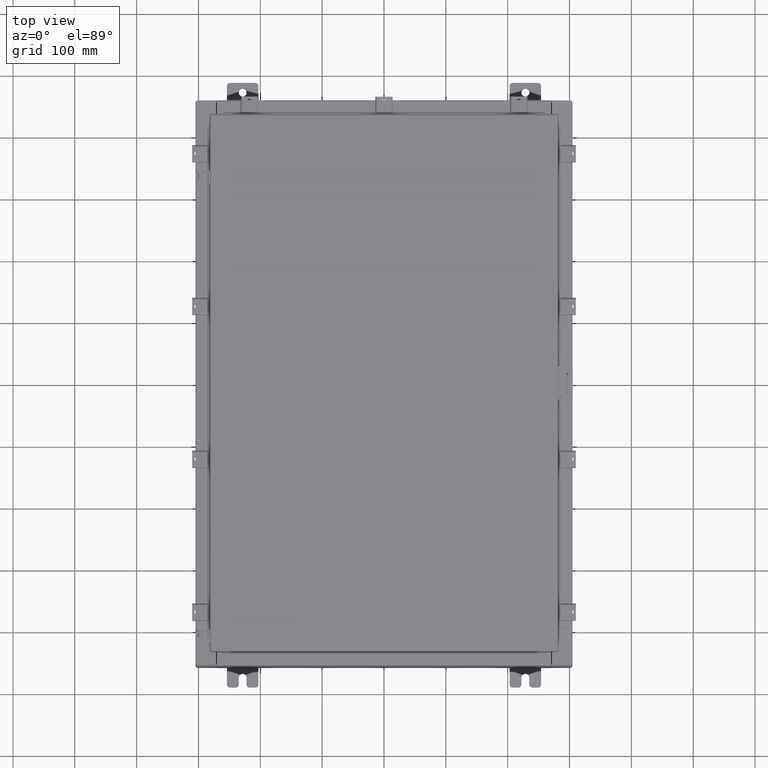
[diagram: clean part render]
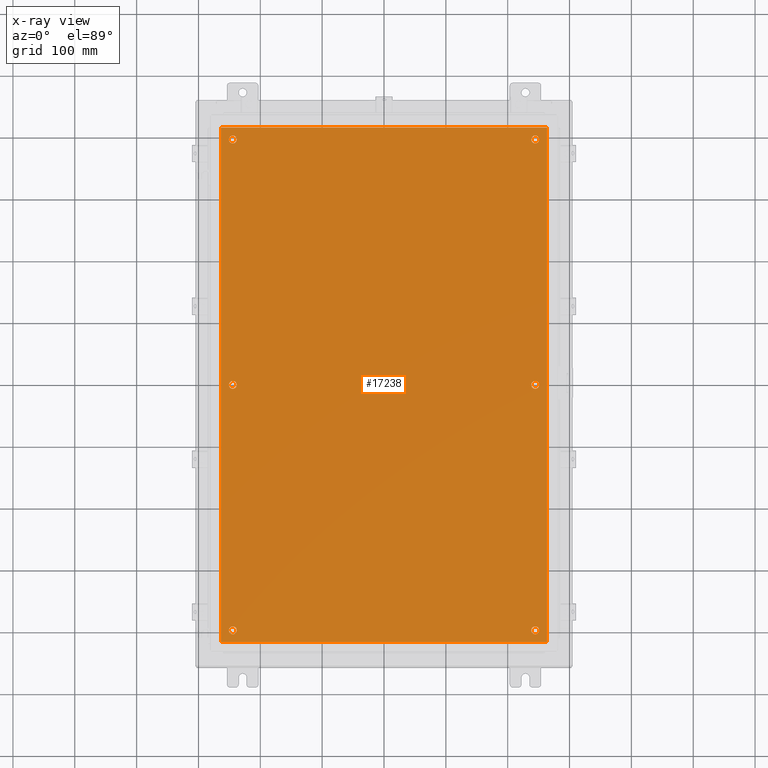
[diagram: x-ray — body ghosted, one internal face saturated and labeled with its STEP entity id]
A machine part, top view, then the same camera in x-ray: the body is ghosted and one INTERNAL B-rep face — a face not visible from any outside direction — is saturated and labeled: STEP entity #17238.
In plain terms, the highlighted planar face has unit normal (0, 0, -1).
Its self-contained STEP definition (entity closure, byte-faithful):
#138 = DIRECTION ( 'NONE',  ( -1.000000000000000000, 0.0000000000000000000, 0.0000000000000000000 ) ) ;
#176 = CARTESIAN_POINT ( 'NONE',  ( 9.375000000000007100, -15.62500000000000200, -0.1039999999999999800 ) ) ;
#216 = CARTESIAN_POINT ( 'NONE',  ( 9.875000000000007100, 15.62500000000000200, -0.1039999999999999800 ) ) ;
#362 = ORIENTED_EDGE ( 'NONE', *, *, #18211, .F. ) ;
#976 = CIRCLE ( 'NONE', #16260, 0.2500000000000008900 ) ;
#1288 = DIRECTION ( 'NONE',  ( -1.000000000000000000, -0.0000000000000000000, -0.0000000000000000000 ) ) ;
#1302 = DIRECTION ( 'NONE',  ( -0.0000000000000000000, -0.0000000000000000000, 1.000000000000000000 ) ) ;
#1373 = EDGE_CURVE ( 'NONE', #12026, #2351, #16965, .T. ) ;
#1478 = DIRECTION ( 'NONE',  ( -0.0000000000000000000, -0.0000000000000000000, 1.000000000000000000 ) ) ;
#1565 = DIRECTION ( 'NONE',  ( 0.0000000000000000000, 0.0000000000000000000, -1.000000000000000000 ) ) ;
#1702 = CARTESIAN_POINT ( 'NONE',  ( -9.875000000000005300, 2.934704822324310800E-016, -0.1039999999999999800 ) ) ;
#1804 = EDGE_LOOP ( 'NONE', ( #2750, #6447 ) ) ;
#2069 = EDGE_LOOP ( 'NONE', ( #3974, #10580 ) ) ;
#2170 = ORIENTED_EDGE ( 'NONE', *, *, #8613, .T. ) ;
#2229 = LINE ( 'NONE', #4068, #16019 ) ;
#2271 = FACE_BOUND ( 'NONE', #4596, .T. ) ;
#2315 = AXIS2_PLACEMENT_3D ( 'NONE', #3792, #16349, #5611 ) ;
#2351 = VERTEX_POINT ( 'NONE', #5819 ) ;
#2583 = CIRCLE ( 'NONE', #13282, 0.2499999999999998100 ) ;
#2634 = ORIENTED_EDGE ( 'NONE', *, *, #9443, .T. ) ;
#2635 = CARTESIAN_POINT ( 'NONE',  ( 9.625000000000007100, -15.62500000000000200, -0.1039999999999999800 ) ) ;
#2667 = DIRECTION ( 'NONE',  ( -0.0000000000000000000, -0.0000000000000000000, 1.000000000000000000 ) ) ;
#2746 = EDGE_CURVE ( 'NONE', #15070, #3281, #16071, .T. ) ;
#2750 = ORIENTED_EDGE ( 'NONE', *, *, #15565, .T. ) ;
#2839 = FACE_BOUND ( 'NONE', #10073, .T. ) ;
#2886 = EDGE_CURVE ( 'NONE', #19954, #11403, #4242, .T. ) ;
#3207 = DIRECTION ( 'NONE',  ( 1.000000000000000000, -0.0000000000000000000, -0.0000000000000000000 ) ) ;
#3281 = VERTEX_POINT ( 'NONE', #13392 ) ;
#3792 = CARTESIAN_POINT ( 'NONE',  ( -9.625000000000007100, -15.62500000000000200, -0.1039999999999999800 ) ) ;
#3833 = AXIS2_PLACEMENT_3D ( 'NONE', #6658, #19201, #8476 ) ;
#3965 = FACE_BOUND ( 'NONE', #2069, .T. ) ;
#3974 = ORIENTED_EDGE ( 'NONE', *, *, #22916, .T. ) ;
#4068 = CARTESIAN_POINT ( 'NONE',  ( 10.38300000000000100, -16.38299999999999600, -0.1040000000000009100 ) ) ;
#4144 = ORIENTED_EDGE ( 'NONE', *, *, #2746, .F. ) ;
#4242 = CIRCLE ( 'NONE', #18033, 0.2499999999999998100 ) ;
#4439 = DIRECTION ( 'NONE',  ( -1.000000000000000000, 0.0000000000000000000, 0.0000000000000000000 ) ) ;
#4551 = EDGE_CURVE ( 'NONE', #3281, #23018, #20234, .T. ) ;
#4596 = EDGE_LOOP ( 'NONE', ( #2170, #2634 ) ) ;
#5258 = CARTESIAN_POINT ( 'NONE',  ( 9.375000000000007100, 2.650915570591087300E-015, -0.1039999999999999800 ) ) ;
#5611 = DIRECTION ( 'NONE',  ( -1.000000000000000000, 0.0000000000000000000, 0.0000000000000000000 ) ) ;
#5819 = CARTESIAN_POINT ( 'NONE',  ( -9.375000000000007100, 15.62500000000000200, -0.1039999999999999800 ) ) ;
#6079 = VERTEX_POINT ( 'NONE', #17801 ) ;
#6082 = CARTESIAN_POINT ( 'NONE',  ( -9.375000000000007100, -15.62500000000000200, -0.1039999999999999800 ) ) ;
#6115 = CARTESIAN_POINT ( 'NONE',  ( -9.625000000000007100, -15.62500000000000200, -0.1039999999999999800 ) ) ;
#6447 = ORIENTED_EDGE ( 'NONE', *, *, #2886, .T. ) ;
#6472 = ORIENTED_EDGE ( 'NONE', *, *, #4551, .F. ) ;
#6495 = VECTOR ( 'NONE', #3207, 39.37007874015748100 ) ;
#6516 = VECTOR ( 'NONE', #21065, 39.37007874015748100 ) ;
#6653 = EDGE_CURVE ( 'NONE', #23272, #7538, #10099, .T. ) ;
#6658 = CARTESIAN_POINT ( 'NONE',  ( 9.625000000000007100, 15.62500000000000200, -0.1039999999999999800 ) ) ;
#6692 = VECTOR ( 'NONE', #1288, 39.37007874015748100 ) ;
#6956 = DIRECTION ( 'NONE',  ( -0.0000000000000000000, -0.0000000000000000000, 1.000000000000000000 ) ) ;
#6976 = DIRECTION ( 'NONE',  ( -1.000000000000000000, 0.0000000000000000000, 0.0000000000000000000 ) ) ;
#7050 = DIRECTION ( 'NONE',  ( -0.0000000000000000000, -0.0000000000000000000, 1.000000000000000000 ) ) ;
#7069 = EDGE_CURVE ( 'NONE', #21419, #13854, #8132, .T. ) ;
#7082 = FACE_BOUND ( 'NONE', #14056, .T. ) ;
#7122 = CARTESIAN_POINT ( 'NONE',  ( 9.625000000000007100, 2.620299400612403500E-015, -0.1039999999999999800 ) ) ;
#7538 = VERTEX_POINT ( 'NONE', #14655 ) ;
#7548 = DIRECTION ( 'NONE',  ( -0.0000000000000000000, -0.0000000000000000000, 1.000000000000000000 ) ) ;
#7722 = VERTEX_POINT ( 'NONE', #9790 ) ;
#7725 = EDGE_CURVE ( 'NONE', #13854, #21419, #10627, .T. ) ;
#7915 = DIRECTION ( 'NONE',  ( -1.000000000000000000, 0.0000000000000000000, 0.0000000000000000000 ) ) ;
#8053 = CARTESIAN_POINT ( 'NONE',  ( -9.625000000000007100, 15.62500000000000200, -0.1039999999999999800 ) ) ;
#8132 = CIRCLE ( 'NONE', #8969, 0.2499999999999998100 ) ;
#8277 = ORIENTED_EDGE ( 'NONE', *, *, #13595, .T. ) ;
#8465 = CARTESIAN_POINT ( 'NONE',  ( -10.38300000000000100, 16.38300000000000300, -0.1039999999999987600 ) ) ;
#8476 = DIRECTION ( 'NONE',  ( -1.000000000000000000, 0.0000000000000000000, 0.0000000000000000000 ) ) ;
#8613 = EDGE_CURVE ( 'NONE', #20097, #7722, #10867, .T. ) ;
#8754 = CARTESIAN_POINT ( 'NONE',  ( 0.0000000000000000000, 0.0000000000000000000, -0.1039999999999999800 ) ) ;
#8969 = AXIS2_PLACEMENT_3D ( 'NONE', #13419, #2667, #15231 ) ;
#9245 = DIRECTION ( 'NONE',  ( -1.000000000000000000, 0.0000000000000000000, 0.0000000000000000000 ) ) ;
#9443 = EDGE_CURVE ( 'NONE', #7722, #20097, #14748, .T. ) ;
#9790 = CARTESIAN_POINT ( 'NONE',  ( 9.375000000000007100, 15.62500000000000200, -0.1039999999999999800 ) ) ;
#9949 = CARTESIAN_POINT ( 'NONE',  ( 10.38300000000000100, -16.38299999999999600, -0.1040000000000009100 ) ) ;
#10073 = EDGE_LOOP ( 'NONE', ( #16006, #13337 ) ) ;
#10099 = CIRCLE ( 'NONE', #13425, 0.2500000000000008900 ) ;
#10221 = EDGE_LOOP ( 'NONE', ( #6472, #4144, #21588, #362 ) ) ;
#10254 = CARTESIAN_POINT ( 'NONE',  ( 10.50000000000000400, 16.38299999999999900, -0.1040000000000009100 ) ) ;
#10580 = ORIENTED_EDGE ( 'NONE', *, *, #22100, .T. ) ;
#10627 = CIRCLE ( 'NONE', #18871, 0.2499999999999998100 ) ;
#10786 = VERTEX_POINT ( 'NONE', #18091 ) ;
#10867 = CIRCLE ( 'NONE', #3833, 0.2499999999999998100 ) ;
#10928 = CIRCLE ( 'NONE', #22681, 0.2500000000000008900 ) ;
#10931 = DIRECTION ( 'NONE',  ( -0.0000000000000000000, -0.0000000000000000000, 1.000000000000000000 ) ) ;
#11403 = VERTEX_POINT ( 'NONE', #22353 ) ;
#11822 = CARTESIAN_POINT ( 'NONE',  ( -9.875000000000007100, 15.62500000000000200, -0.1039999999999999800 ) ) ;
#11843 = FACE_BOUND ( 'NONE', #1804, .T. ) ;
#12026 = VERTEX_POINT ( 'NONE', #11822 ) ;
#12064 = CARTESIAN_POINT ( 'NONE',  ( -9.625000000000007100, 15.62500000000000200, -0.1039999999999999800 ) ) ;
#12119 = EDGE_CURVE ( 'NONE', #10786, #15070, #13142, .T. ) ;
#12234 = CARTESIAN_POINT ( 'NONE',  ( -9.625000000000005300, 2.628543122537473900E-016, -0.1039999999999999800 ) ) ;
#12262 = ORIENTED_EDGE ( 'NONE', *, *, #7725, .T. ) ;
#12281 = CIRCLE ( 'NONE', #2315, 0.2500000000000008900 ) ;
#12335 = PLANE ( 'NONE',  #14533 ) ;
#13113 = DIRECTION ( 'NONE',  ( 0.0000000000000000000, 1.000000000000000000, 0.0000000000000000000 ) ) ;
#13142 = LINE ( 'NONE', #10254, #6692 ) ;
#13282 = AXIS2_PLACEMENT_3D ( 'NONE', #18283, #7548, #20085 ) ;
#13337 = ORIENTED_EDGE ( 'NONE', *, *, #1373, .T. ) ;
#13392 = CARTESIAN_POINT ( 'NONE',  ( -10.38300000000000100, -16.38299999999999600, -0.1040000000000009100 ) ) ;
#13419 = CARTESIAN_POINT ( 'NONE',  ( 9.625000000000007100, -15.62500000000000200, -0.1039999999999999800 ) ) ;
#13425 = AXIS2_PLACEMENT_3D ( 'NONE', #17699, #6956, #19497 ) ;
#13595 = EDGE_CURVE ( 'NONE', #7538, #23272, #976, .T. ) ;
#13854 = VERTEX_POINT ( 'NONE', #16458 ) ;
#13869 = DIRECTION ( 'NONE',  ( -1.000000000000000000, 0.0000000000000000000, 0.0000000000000000000 ) ) ;
#14048 = DIRECTION ( 'NONE',  ( -1.000000000000000000, 0.0000000000000000000, 0.0000000000000000000 ) ) ;
#14056 = EDGE_LOOP ( 'NONE', ( #12262, #20377 ) ) ;
#14140 = DIRECTION ( 'NONE',  ( -1.000000000000000000, 0.0000000000000000000, -0.0000000000000000000 ) ) ;
#14459 = VERTEX_POINT ( 'NONE', #6082 ) ;
#14533 = AXIS2_PLACEMENT_3D ( 'NONE', #8754, #1565, #14140 ) ;
#14655 = CARTESIAN_POINT ( 'NONE',  ( -9.375000000000005300, 2.628543122537473900E-016, -0.1039999999999999800 ) ) ;
#14671 = AXIS2_PLACEMENT_3D ( 'NONE', #6115, #18668, #7915 ) ;
#14748 = CIRCLE ( 'NONE', #22191, 0.2499999999999998100 ) ;
#15070 = VERTEX_POINT ( 'NONE', #20179 ) ;
#15201 = DIRECTION ( 'NONE',  ( -0.0000000000000000000, -0.0000000000000000000, 1.000000000000000000 ) ) ;
#15231 = DIRECTION ( 'NONE',  ( -1.000000000000000000, 0.0000000000000000000, 0.0000000000000000000 ) ) ;
#15565 = EDGE_CURVE ( 'NONE', #11403, #19954, #2583, .T. ) ;
#15825 = ORIENTED_EDGE ( 'NONE', *, *, #6653, .T. ) ;
#16006 = ORIENTED_EDGE ( 'NONE', *, *, #19113, .T. ) ;
#16019 = VECTOR ( 'NONE', #13113, 39.37007874015748100 ) ;
#16071 = LINE ( 'NONE', #8465, #6516 ) ;
#16260 = AXIS2_PLACEMENT_3D ( 'NONE', #12234, #1478, #14048 ) ;
#16349 = DIRECTION ( 'NONE',  ( -0.0000000000000000000, -0.0000000000000000000, 1.000000000000000000 ) ) ;
#16458 = CARTESIAN_POINT ( 'NONE',  ( 9.875000000000007100, -15.62500000000000200, -0.1039999999999999800 ) ) ;
#16609 = FACE_BOUND ( 'NONE', #20448, .T. ) ;
#16965 = CIRCLE ( 'NONE', #19077, 0.2500000000000008900 ) ;
#17238 = ADVANCED_FACE ( 'NONE', ( #11843, #16609, #3965, #7082, #2271, #2839, #20817 ), #12335, .T. ) ;
#17699 = CARTESIAN_POINT ( 'NONE',  ( -9.625000000000005300, 2.628543122537473900E-016, -0.1039999999999999800 ) ) ;
#17801 = CARTESIAN_POINT ( 'NONE',  ( -9.875000000000007100, -15.62500000000000200, -0.1039999999999999800 ) ) ;
#18033 = AXIS2_PLACEMENT_3D ( 'NONE', #7122, #7050, #6976 ) ;
#18091 = CARTESIAN_POINT ( 'NONE',  ( 10.38300000000000100, 16.38300000000000300, -0.1040000000000009100 ) ) ;
#18211 = EDGE_CURVE ( 'NONE', #23018, #10786, #2229, .T. ) ;
#18283 = CARTESIAN_POINT ( 'NONE',  ( 9.625000000000007100, 2.620299400612403500E-015, -0.1039999999999999800 ) ) ;
#18668 = DIRECTION ( 'NONE',  ( -0.0000000000000000000, -0.0000000000000000000, 1.000000000000000000 ) ) ;
#18871 = AXIS2_PLACEMENT_3D ( 'NONE', #2635, #15201, #4439 ) ;
#19077 = AXIS2_PLACEMENT_3D ( 'NONE', #8053, #22530, #9245 ) ;
#19113 = EDGE_CURVE ( 'NONE', #2351, #12026, #10928, .T. ) ;
#19201 = DIRECTION ( 'NONE',  ( -0.0000000000000000000, -0.0000000000000000000, 1.000000000000000000 ) ) ;
#19497 = DIRECTION ( 'NONE',  ( -1.000000000000000000, 0.0000000000000000000, 0.0000000000000000000 ) ) ;
#19954 = VERTEX_POINT ( 'NONE', #5258 ) ;
#20085 = DIRECTION ( 'NONE',  ( -1.000000000000000000, 0.0000000000000000000, 0.0000000000000000000 ) ) ;
#20097 = VERTEX_POINT ( 'NONE', #216 ) ;
#20179 = CARTESIAN_POINT ( 'NONE',  ( -10.38300000000000100, 16.38300000000000300, -0.1039999999999987600 ) ) ;
#20234 = LINE ( 'NONE', #22751, #6495 ) ;
#20377 = ORIENTED_EDGE ( 'NONE', *, *, #7069, .T. ) ;
#20448 = EDGE_LOOP ( 'NONE', ( #8277, #15825 ) ) ;
#20817 = FACE_OUTER_BOUND ( 'NONE', #10221, .T. ) ;
#21065 = DIRECTION ( 'NONE',  ( 0.0000000000000000000, -1.000000000000000000, 0.0000000000000000000 ) ) ;
#21419 = VERTEX_POINT ( 'NONE', #176 ) ;
#21501 = CIRCLE ( 'NONE', #14671, 0.2500000000000008900 ) ;
#21588 = ORIENTED_EDGE ( 'NONE', *, *, #12119, .F. ) ;
#21673 = CARTESIAN_POINT ( 'NONE',  ( 9.625000000000007100, 15.62500000000000200, -0.1039999999999999800 ) ) ;
#22100 = EDGE_CURVE ( 'NONE', #6079, #14459, #12281, .T. ) ;
#22191 = AXIS2_PLACEMENT_3D ( 'NONE', #21673, #10931, #138 ) ;
#22353 = CARTESIAN_POINT ( 'NONE',  ( 9.875000000000007100, 2.620299400612403500E-015, -0.1039999999999999800 ) ) ;
#22530 = DIRECTION ( 'NONE',  ( -0.0000000000000000000, -0.0000000000000000000, 1.000000000000000000 ) ) ;
#22681 = AXIS2_PLACEMENT_3D ( 'NONE', #12064, #1302, #13869 ) ;
#22751 = CARTESIAN_POINT ( 'NONE',  ( -10.50000000000000200, -16.38299999999999600, -0.1040000000000009100 ) ) ;
#22916 = EDGE_CURVE ( 'NONE', #14459, #6079, #21501, .T. ) ;
#23018 = VERTEX_POINT ( 'NONE', #9949 ) ;
#23272 = VERTEX_POINT ( 'NONE', #1702 ) ;